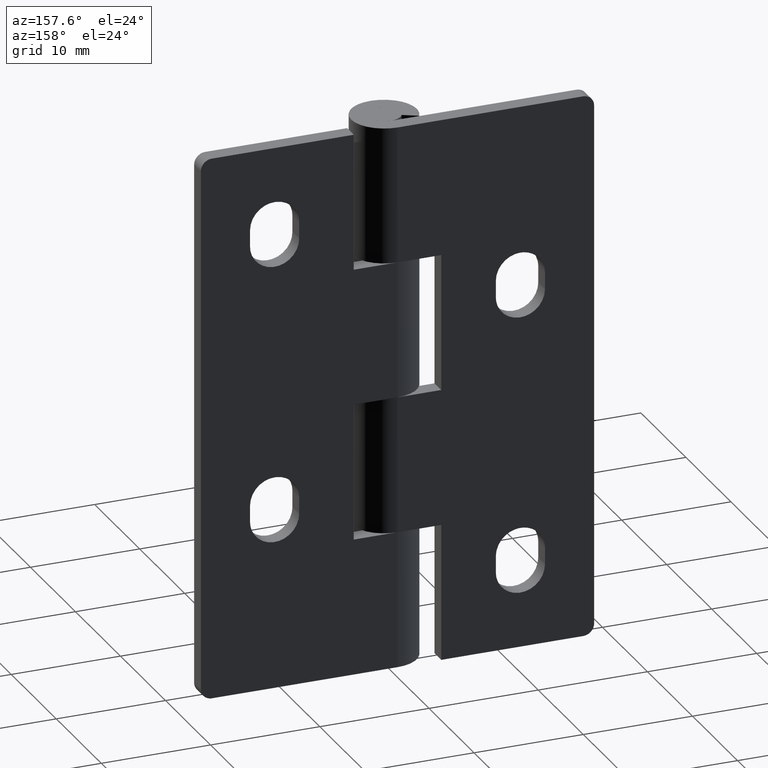
[diagram: clean part render]
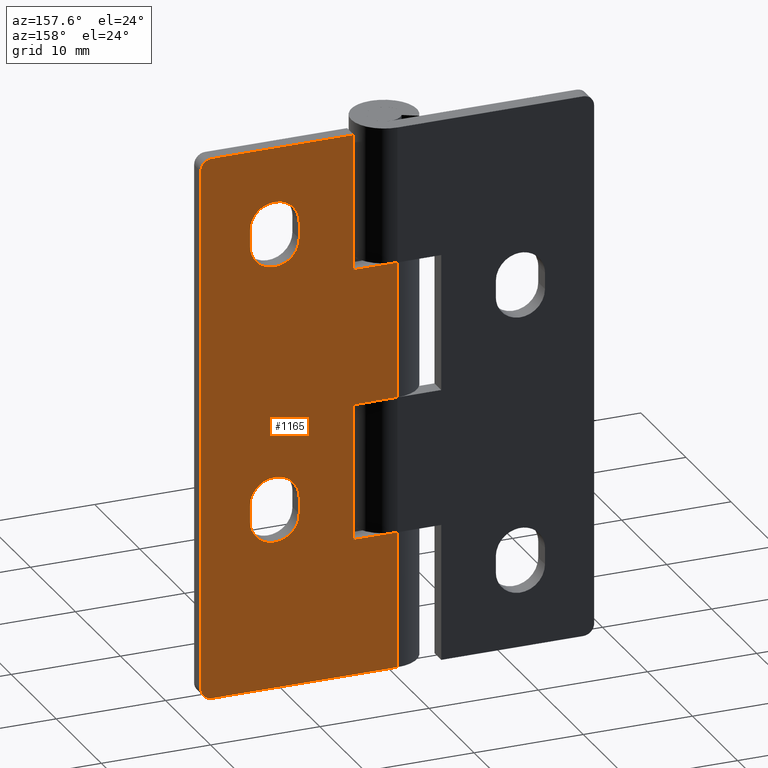
[diagram: same view with one face highlighted and labeled with its STEP entity id]
A machine part, auxiliary view. The second image highlights one B-rep face of the part: STEP entity #1165.
In plain terms, the highlighted face is a freeform B-spline surface patch.
Its self-contained STEP definition (entity closure, byte-faithful):
#58=CARTESIAN_POINT('',(17.0,3.0,50.0));
#59=VERTEX_POINT('',#58);
#60=CARTESIAN_POINT('',(18.0,3.0,49.0));
#61=VERTEX_POINT('',#60);
#62=CARTESIAN_POINT('',(17.0,3.0,50.0));
#63=CARTESIAN_POINT('',(18.000000000000007,3.0,50.0));
#64=CARTESIAN_POINT('',(18.0,3.0,49.0));
#72=(BOUNDED_CURVE()B_SPLINE_CURVE(2,(#62,#63,#64),.UNSPECIFIED.,.F.,.U.)CURVE()GEOMETRIC_REPRESENTATION_ITEM()QUASI_UNIFORM_CURVE()RATIONAL_B_SPLINE_CURVE((1.0,0.707106781186548,1.0))REPRESENTATION_ITEM(''));
#73=EDGE_CURVE('',#59,#61,#72,.T.);
#119=CARTESIAN_POINT('',(18.0,3.0,1.0));
#120=VERTEX_POINT('',#119);
#121=CARTESIAN_POINT('',(17.0,3.0,0.0));
#122=VERTEX_POINT('',#121);
#123=CARTESIAN_POINT('',(18.0,3.0,1.0));
#124=CARTESIAN_POINT('',(18.000000000000007,3.0,0.0));
#125=CARTESIAN_POINT('',(17.0,3.0,0.0));
#133=(BOUNDED_CURVE()B_SPLINE_CURVE(2,(#123,#124,#125),.UNSPECIFIED.,.F.,.U.)CURVE()GEOMETRIC_REPRESENTATION_ITEM()QUASI_UNIFORM_CURVE()RATIONAL_B_SPLINE_CURVE((1.0,0.707106781186548,1.0))REPRESENTATION_ITEM(''));
#134=EDGE_CURVE('',#120,#122,#133,.T.);
#184=CARTESIAN_POINT('',(9.0,3.0,41.250000000000000));
#185=VERTEX_POINT('',#184);
#186=CARTESIAN_POINT('',(13.500000000000000,3.0,41.250000392698887));
#187=VERTEX_POINT('',#186);
#188=CARTESIAN_POINT('',(9.0,3.0,41.250000000000000));
#189=CARTESIAN_POINT('',(9.0,3.000000000000000,39.950961807056927));
#190=CARTESIAN_POINT('',(10.125000113362409,3.0,39.301442776035202));
#191=CARTESIAN_POINT('',(11.250000226724815,3.000000000000000,38.651923745013484));
#192=CARTESIAN_POINT('',(12.375000226724801,3.0,39.301442972384663));
#193=CARTESIAN_POINT('',(13.500000226724795,3.000000000000000,39.950962199755836));
#194=CARTESIAN_POINT('',(13.499999999999959,3.0,41.250000392698887));
#202=(BOUNDED_CURVE()B_SPLINE_CURVE(2,(#188,#189,#190,#191,#192,#193,#194),.UNSPECIFIED.,.F.,.U.)B_SPLINE_CURVE_WITH_KNOTS((3,2,2,3),(0.0,0.333333333333333,0.666666666666667,1.0),.UNSPECIFIED.)CURVE()GEOMETRIC_REPRESENTATION_ITEM()RATIONAL_B_SPLINE_CURVE((1.0,0.866025389240035,1.0,0.866025389240035,1.0,0.866025389240035,1.0))REPRESENTATION_ITEM(''));
#203=EDGE_CURVE('',#185,#187,#202,.T.);
#244=CARTESIAN_POINT('',(9.0,3.0,42.749999803650446));
#245=VERTEX_POINT('',#244);
#246=CARTESIAN_POINT('',(9.0,3.0,42.749999803650446));
#247=CARTESIAN_POINT('',(9.0,3.0,41.250000000000000));
#248=QUASI_UNIFORM_CURVE('',1,(#246,#247),.UNSPECIFIED.,.F.,.U.);
#249=EDGE_CURVE('',#245,#185,#248,.T.);
#285=CARTESIAN_POINT('',(13.500000000000000,3.0,42.750000000000000));
#286=VERTEX_POINT('',#285);
#287=CARTESIAN_POINT('',(13.500000000000000,3.0,42.750000000000000));
#288=CARTESIAN_POINT('',(13.500000000000007,3.000000000000001,44.049038149309887));
#289=CARTESIAN_POINT('',(12.374999943318770,3.0,44.698557191239907));
#290=CARTESIAN_POINT('',(11.249999886637532,3.000000000000001,45.348076233169934));
#291=CARTESIAN_POINT('',(10.124999886637539,3.0,44.698557093065141));
#292=CARTESIAN_POINT('',(8.999999886637536,3.000000000000001,44.049037952960333));
#293=CARTESIAN_POINT('',(9.000000000000007,3.0,42.749999803650446));
#301=(BOUNDED_CURVE()B_SPLINE_CURVE(2,(#287,#288,#289,#290,#291,#292,#293),.UNSPECIFIED.,.F.,.U.)B_SPLINE_CURVE_WITH_KNOTS((3,2,2,3),(0.0,0.333333333333333,0.666666666666667,1.0),.UNSPECIFIED.)CURVE()GEOMETRIC_REPRESENTATION_ITEM()RATIONAL_B_SPLINE_CURVE((1.0,0.866025396512233,1.0,0.866025396512233,1.0,0.866025396512233,1.0))REPRESENTATION_ITEM(''));
#302=EDGE_CURVE('',#286,#245,#301,.T.);
#337=CARTESIAN_POINT('',(13.500000000000000,3.0,41.250000392698887));
#338=CARTESIAN_POINT('',(13.500000000000000,3.0,42.750000000000000));
#339=QUASI_UNIFORM_CURVE('',1,(#337,#338),.UNSPECIFIED.,.F.,.U.);
#340=EDGE_CURVE('',#187,#286,#339,.T.);
#370=CARTESIAN_POINT('',(9.0,3.0,15.750000000000000));
#371=VERTEX_POINT('',#370);
#372=CARTESIAN_POINT('',(13.500000000000000,3.0,15.750000392699100));
#373=VERTEX_POINT('',#372);
#374=CARTESIAN_POINT('',(9.0,3.0,15.750000000000000));
#375=CARTESIAN_POINT('',(9.0,3.0,14.450961807056881));
#376=CARTESIAN_POINT('',(10.125000113362470,3.0,13.801442776035170));
#377=CARTESIAN_POINT('',(11.250000226724936,3.0,13.151923745013464));
#378=CARTESIAN_POINT('',(12.375000226724920,3.0,13.801442972384731));
#379=CARTESIAN_POINT('',(13.500000226724906,3.0,14.450962199755992));
#380=CARTESIAN_POINT('',(13.500000000000000,3.0,15.750000392699100));
#388=(BOUNDED_CURVE()B_SPLINE_CURVE(2,(#374,#375,#376,#377,#378,#379,#380),.UNSPECIFIED.,.F.,.U.)B_SPLINE_CURVE_WITH_KNOTS((3,2,2,3),(0.0,0.333333333333333,0.666666666666667,1.0),.UNSPECIFIED.)CURVE()GEOMETRIC_REPRESENTATION_ITEM()RATIONAL_B_SPLINE_CURVE((1.0,0.866025389240027,1.0,0.866025389240027,1.0,0.866025389240027,1.0))REPRESENTATION_ITEM(''));
#389=EDGE_CURVE('',#371,#373,#388,.T.);
#430=CARTESIAN_POINT('',(9.0,3.0,17.249999803650351));
#431=VERTEX_POINT('',#430);
#432=CARTESIAN_POINT('',(9.0,3.0,17.249999803650351));
#433=CARTESIAN_POINT('',(9.0,3.0,15.750000000000000));
#434=QUASI_UNIFORM_CURVE('',1,(#432,#433),.UNSPECIFIED.,.F.,.U.);
#435=EDGE_CURVE('',#431,#371,#434,.T.);
#471=CARTESIAN_POINT('',(13.500000000000000,3.0,17.250000000000000));
#472=VERTEX_POINT('',#471);
#473=CARTESIAN_POINT('',(13.500000000000000,3.0,17.250000000000000));
#474=CARTESIAN_POINT('',(13.499999999999996,3.000000000000001,18.549038149309911));
#475=CARTESIAN_POINT('',(12.374999943318739,3.0,19.198557191239932));
#476=CARTESIAN_POINT('',(11.249999886637474,3.000000000000001,19.848076233169945));
#477=CARTESIAN_POINT('',(10.124999886637481,3.0,19.198557093065101));
#478=CARTESIAN_POINT('',(8.999999886637481,3.000000000000001,18.549037952960251));
#479=CARTESIAN_POINT('',(9.000000000000007,3.0,17.249999803650351));
#487=(BOUNDED_CURVE()B_SPLINE_CURVE(2,(#473,#474,#475,#476,#477,#478,#479),.UNSPECIFIED.,.F.,.U.)B_SPLINE_CURVE_WITH_KNOTS((3,2,2,3),(0.0,0.333333333333333,0.666666666666667,1.0),.UNSPECIFIED.)CURVE()GEOMETRIC_REPRESENTATION_ITEM()RATIONAL_B_SPLINE_CURVE((1.0,0.866025396512229,1.0,0.866025396512229,1.0,0.866025396512229,1.0))REPRESENTATION_ITEM(''));
#488=EDGE_CURVE('',#472,#431,#487,.T.);
#523=CARTESIAN_POINT('',(13.500000000000000,3.0,15.750000392699100));
#524=CARTESIAN_POINT('',(13.500000000000000,3.0,17.250000000000000));
#525=QUASI_UNIFORM_CURVE('',1,(#523,#524),.UNSPECIFIED.,.F.,.U.);
#526=EDGE_CURVE('',#373,#472,#525,.T.);
#552=CARTESIAN_POINT('',(4.0,3.0,37.500000000000000));
#553=VERTEX_POINT('',#552);
#559=CARTESIAN_POINT('',(0.0,3.0,37.500000000000000));
#560=VERTEX_POINT('',#559);
#561=CARTESIAN_POINT('',(4.0,3.0,37.500000000000000));
#562=CARTESIAN_POINT('',(0.0,3.0,37.500000000000000));
#563=QUASI_UNIFORM_CURVE('',1,(#561,#562),.UNSPECIFIED.,.F.,.U.);
#564=EDGE_CURVE('',#553,#560,#563,.T.);
#628=CARTESIAN_POINT('',(4.0,3.0,50.0));
#629=VERTEX_POINT('',#628);
#635=CARTESIAN_POINT('',(4.0,3.0,50.0));
#636=CARTESIAN_POINT('',(4.0,3.0,37.500000000000000));
#637=QUASI_UNIFORM_CURVE('',1,(#635,#636),.UNSPECIFIED.,.F.,.U.);
#638=EDGE_CURVE('',#629,#553,#637,.T.);
#658=CARTESIAN_POINT('',(4.0,3.0,12.500000000000000));
#659=VERTEX_POINT('',#658);
#665=CARTESIAN_POINT('',(-5.510729E-016,3.0,12.500000000000000));
#666=VERTEX_POINT('',#665);
#667=CARTESIAN_POINT('',(4.0,3.0,12.500000000000000));
#668=CARTESIAN_POINT('',(-5.510729E-016,3.0,12.500000000000000));
#669=QUASI_UNIFORM_CURVE('',1,(#667,#668),.UNSPECIFIED.,.F.,.U.);
#670=EDGE_CURVE('',#659,#666,#669,.T.);
#734=CARTESIAN_POINT('',(4.0,3.0,25.0));
#735=VERTEX_POINT('',#734);
#741=CARTESIAN_POINT('',(4.0,3.0,25.0));
#742=CARTESIAN_POINT('',(4.0,3.0,12.500000000000000));
#743=QUASI_UNIFORM_CURVE('',1,(#741,#742),.UNSPECIFIED.,.F.,.U.);
#744=EDGE_CURVE('',#735,#659,#743,.T.);
#790=CARTESIAN_POINT('',(0.0,3.0,25.0));
#791=VERTEX_POINT('',#790);
#811=CARTESIAN_POINT('',(0.0,3.0,25.0));
#812=CARTESIAN_POINT('',(4.0,3.0,25.0));
#813=QUASI_UNIFORM_CURVE('',1,(#811,#812),.UNSPECIFIED.,.F.,.U.);
#814=EDGE_CURVE('',#791,#735,#813,.T.);
#825=CARTESIAN_POINT('',(-5.510729E-016,3.0,0.0));
#826=VERTEX_POINT('',#825);
#827=CARTESIAN_POINT('',(-5.510729E-016,3.0,0.0));
#828=CARTESIAN_POINT('',(17.0,3.0,0.0));
#829=QUASI_UNIFORM_CURVE('',1,(#827,#828),.UNSPECIFIED.,.F.,.U.);
#830=EDGE_CURVE('',#826,#122,#829,.T.);
#901=CARTESIAN_POINT('',(4.0,3.0,50.0));
#902=CARTESIAN_POINT('',(17.0,3.0,50.0));
#903=QUASI_UNIFORM_CURVE('',1,(#901,#902),.UNSPECIFIED.,.F.,.U.);
#904=EDGE_CURVE('',#629,#59,#903,.T.);
#938=CARTESIAN_POINT('',(0.0,3.0,37.500000000000000));
#939=CARTESIAN_POINT('',(0.0,3.0,25.0));
#940=QUASI_UNIFORM_CURVE('',1,(#938,#939),.UNSPECIFIED.,.F.,.U.);
#941=EDGE_CURVE('',#560,#791,#940,.T.);
#1011=CARTESIAN_POINT('',(18.0,3.0,49.0));
#1012=CARTESIAN_POINT('',(18.0,3.0,1.0));
#1013=QUASI_UNIFORM_CURVE('',1,(#1011,#1012),.UNSPECIFIED.,.F.,.U.);
#1014=EDGE_CURVE('',#61,#120,#1013,.T.);
#1044=CARTESIAN_POINT('',(-5.510729E-016,3.0,12.500000000000000));
#1045=CARTESIAN_POINT('',(-5.510729E-016,3.0,0.0));
#1046=QUASI_UNIFORM_CURVE('',1,(#1044,#1045),.UNSPECIFIED.,.F.,.U.);
#1047=EDGE_CURVE('',#666,#826,#1046,.T.);
#1134=CARTESIAN_POINT('',(-0.899099965112508,3.0,-2.497499903090299));
#1135=CARTESIAN_POINT('',(-0.899099965112508,3.0,52.497501244194808));
#1136=CARTESIAN_POINT('',(18.899100447910129,3.0,-2.497499903090299));
#1137=CARTESIAN_POINT('',(18.899100447910129,3.0,52.497501244194808));
#1138=B_SPLINE_SURFACE_WITH_KNOTS('',1,1,((#1134,#1136),(#1135,#1137)),.UNSPECIFIED.,.F.,.F.,.U.,(2,2),(2,2),(0.0,54.995001147285109),(0.0,19.798200413022641),.UNSPECIFIED.);
#1139=ORIENTED_EDGE('',*,*,#1014,.T.);
#1140=ORIENTED_EDGE('',*,*,#134,.T.);
#1141=ORIENTED_EDGE('',*,*,#830,.F.);
#1142=ORIENTED_EDGE('',*,*,#1047,.F.);
#1143=ORIENTED_EDGE('',*,*,#670,.F.);
#1144=ORIENTED_EDGE('',*,*,#744,.F.);
#1145=ORIENTED_EDGE('',*,*,#814,.F.);
#1146=ORIENTED_EDGE('',*,*,#941,.F.);
#1147=ORIENTED_EDGE('',*,*,#564,.F.);
#1148=ORIENTED_EDGE('',*,*,#638,.F.);
#1149=ORIENTED_EDGE('',*,*,#904,.T.);
#1150=ORIENTED_EDGE('',*,*,#73,.T.);
#1151=EDGE_LOOP('',(#1139,#1140,#1141,#1142,#1143,#1144,#1145,#1146,#1147,#1148,#1149,#1150));
#1152=FACE_OUTER_BOUND('',#1151,.T.);
#1153=ORIENTED_EDGE('',*,*,#389,.T.);
#1154=ORIENTED_EDGE('',*,*,#526,.T.);
#1155=ORIENTED_EDGE('',*,*,#488,.T.);
#1156=ORIENTED_EDGE('',*,*,#435,.T.);
#1157=EDGE_LOOP('',(#1153,#1154,#1155,#1156));
#1158=FACE_BOUND('',#1157,.T.);
#1159=ORIENTED_EDGE('',*,*,#203,.T.);
#1160=ORIENTED_EDGE('',*,*,#340,.T.);
#1161=ORIENTED_EDGE('',*,*,#302,.T.);
#1162=ORIENTED_EDGE('',*,*,#249,.T.);
#1163=EDGE_LOOP('',(#1159,#1160,#1161,#1162));
#1164=FACE_BOUND('',#1163,.T.);
#1165=ADVANCED_FACE('',(#1152,#1158,#1164),#1138,.T.);